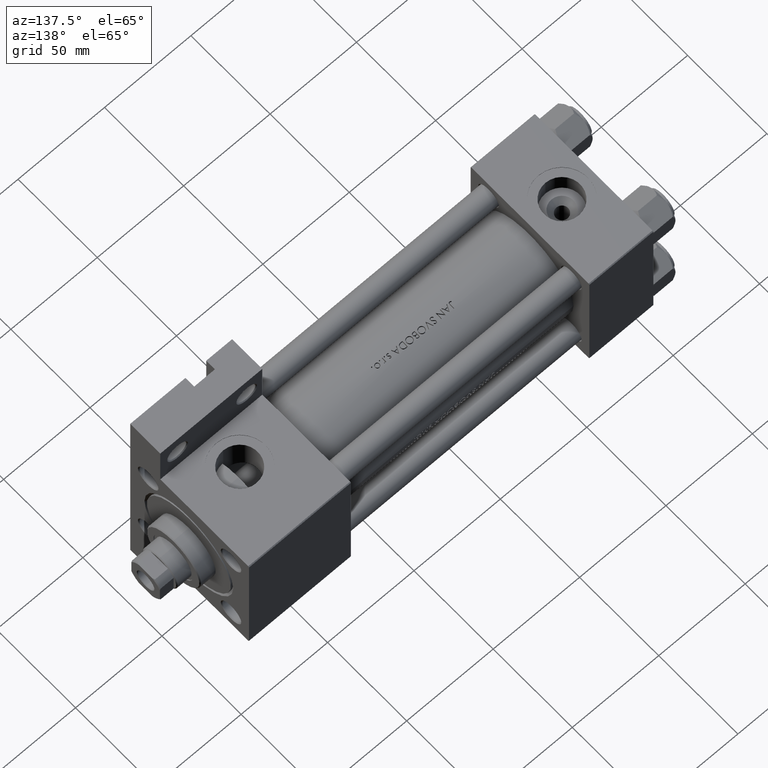
[diagram: clean part render]
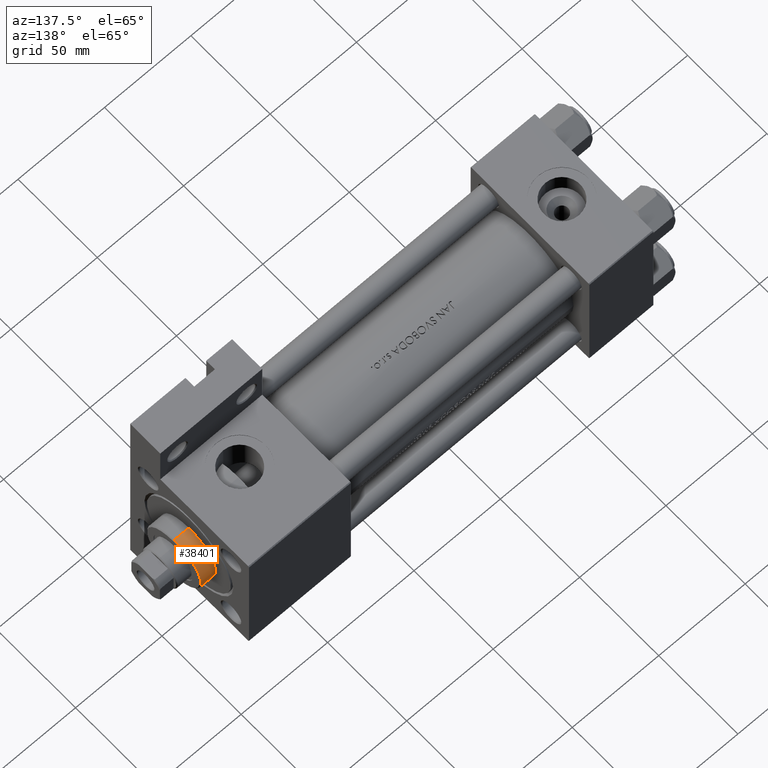
[diagram: same view with one face highlighted and labeled with its STEP entity id]
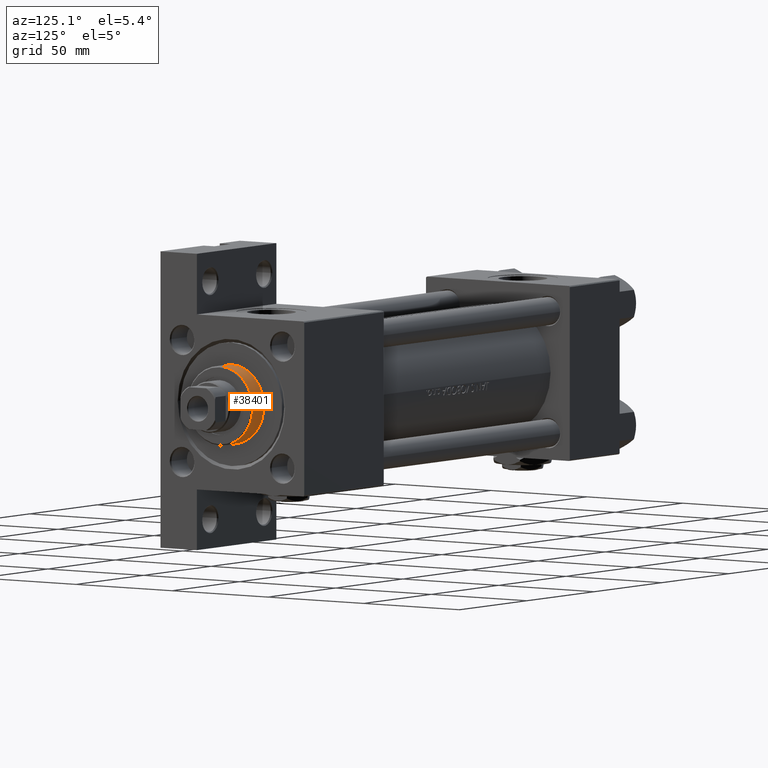
[diagram: same view with one face highlighted and labeled with its STEP entity id]
A machine part, auxiliary view. The second image highlights one B-rep face of the part: STEP entity #38401.
A second angle (auxiliary view) of the same face is appended — the face is thin or edge-on in the first view.
In plain terms, the highlighted cylindrical surface (partial cylindrical patch) has radius 17 mm, axis along (-1, 0, 0).
Its self-contained STEP definition (entity closure, byte-faithful):
#701 = CARTESIAN_POINT ( 'NONE',  ( -17.00000000000000000, 0.000000000000000000, 28.69999999999999929 ) ) ;
#863 = CARTESIAN_POINT ( 'NONE',  ( -17.00000000000000000, 0.000000000000000000, 37.19999999999999574 ) ) ;
#3914 = FACE_OUTER_BOUND ( 'NONE', #26376, .T. ) ;
#4925 = CIRCLE ( 'NONE', #39420, 17.00000000000000000 ) ;
#6931 = ORIENTED_EDGE ( 'NONE', *, *, #21872, .T. ) ;
#7525 = EDGE_CURVE ( 'NONE', #10685, #24412, #4925, .T. ) ;
#7527 = VERTEX_POINT ( 'NONE', #863 ) ;
#7679 = DIRECTION ( 'NONE',  ( -1.000000000000000000, 0.000000000000000000, 0.000000000000000000 ) ) ;
#8173 = VERTEX_POINT ( 'NONE', #32837 ) ;
#8622 = DIRECTION ( 'NONE',  ( 0.000000000000000000, 0.000000000000000000, -1.000000000000000000 ) ) ;
#9357 = LINE ( 'NONE', #13105, #22613 ) ;
#10685 = VERTEX_POINT ( 'NONE', #701 ) ;
#13105 = CARTESIAN_POINT ( 'NONE',  ( -17.00000000000000000, 0.000000000000000000, 37.69999999999999574 ) ) ;
#14362 = VECTOR ( 'NONE', #33660, 1000.000000000000000 ) ;
#15661 = DIRECTION ( 'NONE',  ( 1.000000000000000000, 0.000000000000000000, 0.000000000000000000 ) ) ;
#16717 = ORIENTED_EDGE ( 'NONE', *, *, #7525, .T. ) ;
#18473 = CYLINDRICAL_SURFACE ( 'NONE', #30543, 17.00000000000000000 ) ;
#18786 = LINE ( 'NONE', #41679, #14362 ) ;
#21872 = EDGE_CURVE ( 'NONE', #8173, #7527, #47159, .T. ) ;
#22023 = CARTESIAN_POINT ( 'NONE',  ( 0.000000000000000000, 0.000000000000000000, 37.69999999999999574 ) ) ;
#22613 = VECTOR ( 'NONE', #28468, 1000.000000000000000 ) ;
#23246 = DIRECTION ( 'NONE',  ( 0.000000000000000000, 0.000000000000000000, 1.000000000000000000 ) ) ;
#24412 = VERTEX_POINT ( 'NONE', #31096 ) ;
#24731 = AXIS2_PLACEMENT_3D ( 'NONE', #31247, #8622, #43766 ) ;
#26376 = EDGE_LOOP ( 'NONE', ( #37704, #6931, #36014, #16717 ) ) ;
#28468 = DIRECTION ( 'NONE',  ( -0.000000000000000000, -0.000000000000000000, -1.000000000000000000 ) ) ;
#30543 = AXIS2_PLACEMENT_3D ( 'NONE', #22023, #49619, #7679 ) ;
#31096 = CARTESIAN_POINT ( 'NONE',  ( 17.00000000000000000, 2.081899558550500280E-15, 28.69999999999999929 ) ) ;
#31247 = CARTESIAN_POINT ( 'NONE',  ( 0.000000000000000000, 0.000000000000000000, 37.19999999999999574 ) ) ;
#32293 = EDGE_CURVE ( 'NONE', #8173, #24412, #18786, .T. ) ;
#32837 = CARTESIAN_POINT ( 'NONE',  ( 17.00000000000000000, 2.081899558550500280E-15, 37.19999999999999574 ) ) ;
#33660 = DIRECTION ( 'NONE',  ( -0.000000000000000000, -0.000000000000000000, -1.000000000000000000 ) ) ;
#35295 = CARTESIAN_POINT ( 'NONE',  ( 0.000000000000000000, 0.000000000000000000, 28.69999999999999929 ) ) ;
#36014 = ORIENTED_EDGE ( 'NONE', *, *, #41501, .T. ) ;
#37704 = ORIENTED_EDGE ( 'NONE', *, *, #32293, .F. ) ;
#38401 = ADVANCED_FACE ( 'NONE', ( #3914 ), #18473, .T. ) ;
#39420 = AXIS2_PLACEMENT_3D ( 'NONE', #35295, #23246, #15661 ) ;
#41501 = EDGE_CURVE ( 'NONE', #7527, #10685, #9357, .T. ) ;
#41679 = CARTESIAN_POINT ( 'NONE',  ( 17.00000000000000000, 2.081899558550500280E-15, 37.69999999999999574 ) ) ;
#43766 = DIRECTION ( 'NONE',  ( 1.000000000000000000, 0.000000000000000000, 0.000000000000000000 ) ) ;
#47159 = CIRCLE ( 'NONE', #24731, 17.00000000000000000 ) ;
#49619 = DIRECTION ( 'NONE',  ( -0.000000000000000000, -0.000000000000000000, -1.000000000000000000 ) ) ;